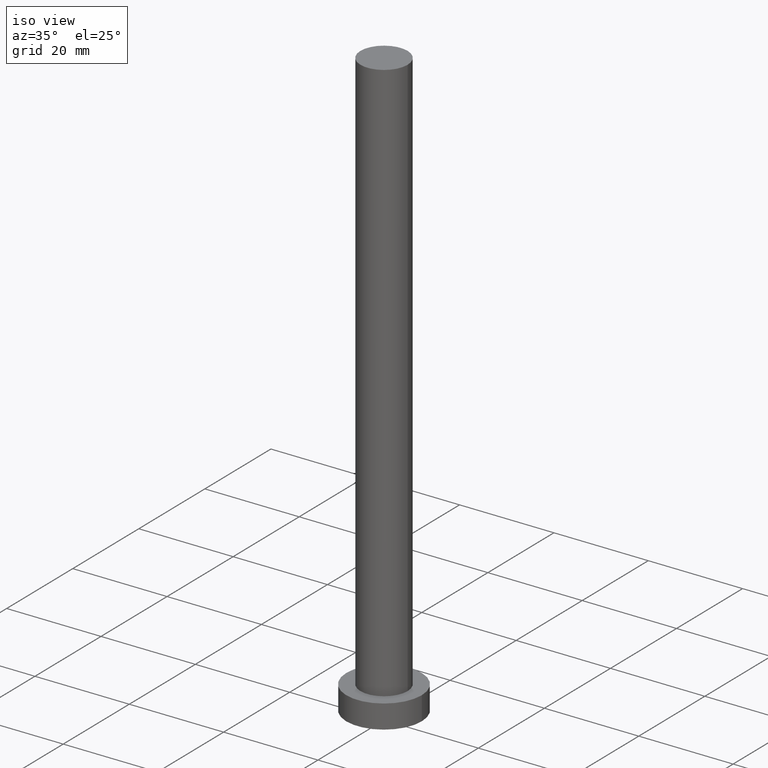
[diagram: clean part render]
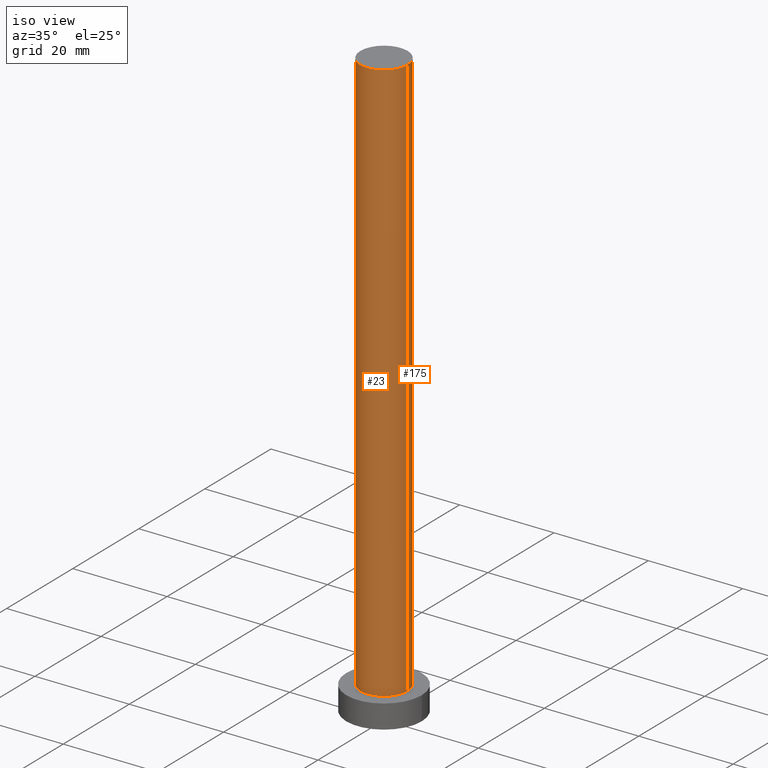
[diagram: same view with one multi-face feature highlighted, each face labeled with its STEP entity id]
A machine part, iso view. The highlighted faces form ONE feature: a constant-radius fillet chain: 2 tangent blend faces with common blend radius 5 mm. The faces share edges in the B-rep.
Their STEP definitions:
[1] entity #175 (Cylinder):
#1 = DIRECTION ( 'NONE',  ( 0.000000000000000000, 0.000000000000000000, 1.000000000000000000 ) ) ;
#8 = CARTESIAN_POINT ( 'NONE',  ( 5.000000000000000888, 6.123233995736767268E-16, 125.0000000000000000 ) ) ;
#16 = DIRECTION ( 'NONE',  ( -1.000000000000000000, 0.000000000000000000, 0.000000000000000000 ) ) ;
#18 = VERTEX_POINT ( 'NONE', #149 ) ;
#20 = VERTEX_POINT ( 'NONE', #32 ) ;
#32 = CARTESIAN_POINT ( 'NONE',  ( 5.000000000000000888, 6.123233995736767268E-16, 125.0000000000000000 ) ) ;
#33 = VECTOR ( 'NONE', #46, 1000.000000000000000 ) ;
#34 = LINE ( 'NONE', #103, #33 ) ;
#38 = CYLINDRICAL_SURFACE ( 'NONE', #72, 5.000000000000000888 ) ;
#46 = DIRECTION ( 'NONE',  ( -0.000000000000000000, -0.000000000000000000, -1.000000000000000000 ) ) ;
#49 = CARTESIAN_POINT ( 'NONE',  ( -5.000000000000000888, 0.000000000000000000, 125.0000000000000000 ) ) ;
#62 = EDGE_CURVE ( 'NONE', #20, #18, #80, .T. ) ;
#68 = DIRECTION ( 'NONE',  ( 0.000000000000000000, 0.000000000000000000, 1.000000000000000000 ) ) ;
#69 = CIRCLE ( 'NONE', #180, 5.000000000000000888 ) ;
#72 = AXIS2_PLACEMENT_3D ( 'NONE', #109, #190, #16 ) ;
#74 = EDGE_CURVE ( 'NONE', #241, #238, #34, .T. ) ;
#77 = VECTOR ( 'NONE', #165, 1000.000000000000000 ) ;
#80 = LINE ( 'NONE', #8, #77 ) ;
#90 = EDGE_CURVE ( 'NONE', #18, #238, #159, .T. ) ;
#96 = CARTESIAN_POINT ( 'NONE',  ( 0.000000000000000000, 0.000000000000000000, 125.0000000000000000 ) ) ;
#103 = CARTESIAN_POINT ( 'NONE',  ( -5.000000000000000888, 0.000000000000000000, 125.0000000000000000 ) ) ;
#109 = CARTESIAN_POINT ( 'NONE',  ( 0.000000000000000000, 0.000000000000000000, 125.0000000000000000 ) ) ;
#121 = CARTESIAN_POINT ( 'NONE',  ( -5.000000000000000888, 0.000000000000000000, 5.000000000000000000 ) ) ;
#135 = FACE_OUTER_BOUND ( 'NONE', #210, .T. ) ;
#149 = CARTESIAN_POINT ( 'NONE',  ( 5.000000000000000888, 6.123233995736767268E-16, 5.000000000000000000 ) ) ;
#152 = ORIENTED_EDGE ( 'NONE', *, *, #90, .T. ) ;
#156 = EDGE_CURVE ( 'NONE', #20, #241, #69, .T. ) ;
#159 = CIRCLE ( 'NONE', #202, 5.000000000000000888 ) ;
#165 = DIRECTION ( 'NONE',  ( -0.000000000000000000, -0.000000000000000000, -1.000000000000000000 ) ) ;
#166 = ORIENTED_EDGE ( 'NONE', *, *, #62, .T. ) ;
#175 = ADVANCED_FACE ( 'NONE', ( #135 ), #38, .T. ) ;
#179 = CARTESIAN_POINT ( 'NONE',  ( 0.000000000000000000, 0.000000000000000000, 5.000000000000000000 ) ) ;
#180 = AXIS2_PLACEMENT_3D ( 'NONE', #96, #1, #230 ) ;
#190 = DIRECTION ( 'NONE',  ( -0.000000000000000000, -0.000000000000000000, -1.000000000000000000 ) ) ;
#192 = ORIENTED_EDGE ( 'NONE', *, *, #74, .F. ) ;
#202 = AXIS2_PLACEMENT_3D ( 'NONE', #179, #68, #251 ) ;
#210 = EDGE_LOOP ( 'NONE', ( #221, #166, #152, #192 ) ) ;
#221 = ORIENTED_EDGE ( 'NONE', *, *, #156, .F. ) ;
#230 = DIRECTION ( 'NONE',  ( 1.000000000000000000, 0.000000000000000000, 0.000000000000000000 ) ) ;
#238 = VERTEX_POINT ( 'NONE', #121 ) ;
#241 = VERTEX_POINT ( 'NONE', #49 ) ;
#251 = DIRECTION ( 'NONE',  ( 1.000000000000000000, 0.000000000000000000, 0.000000000000000000 ) ) ;
[2] entity #23 (Cylinder):
#2 = CIRCLE ( 'NONE', #129, 5.000000000000000888 ) ;
#8 = CARTESIAN_POINT ( 'NONE',  ( 5.000000000000000888, 6.123233995736767268E-16, 125.0000000000000000 ) ) ;
#17 = DIRECTION ( 'NONE',  ( 0.000000000000000000, 0.000000000000000000, 1.000000000000000000 ) ) ;
#18 = VERTEX_POINT ( 'NONE', #149 ) ;
#20 = VERTEX_POINT ( 'NONE', #32 ) ;
#23 = ADVANCED_FACE ( 'NONE', ( #203 ), #198, .T. ) ;
#29 = DIRECTION ( 'NONE',  ( -0.000000000000000000, -0.000000000000000000, -1.000000000000000000 ) ) ;
#32 = CARTESIAN_POINT ( 'NONE',  ( 5.000000000000000888, 6.123233995736767268E-16, 125.0000000000000000 ) ) ;
#33 = VECTOR ( 'NONE', #46, 1000.000000000000000 ) ;
#34 = LINE ( 'NONE', #103, #33 ) ;
#46 = DIRECTION ( 'NONE',  ( -0.000000000000000000, -0.000000000000000000, -1.000000000000000000 ) ) ;
#49 = CARTESIAN_POINT ( 'NONE',  ( -5.000000000000000888, 0.000000000000000000, 125.0000000000000000 ) ) ;
#53 = AXIS2_PLACEMENT_3D ( 'NONE', #118, #29, #245 ) ;
#62 = EDGE_CURVE ( 'NONE', #20, #18, #80, .T. ) ;
#74 = EDGE_CURVE ( 'NONE', #241, #238, #34, .T. ) ;
#75 = CARTESIAN_POINT ( 'NONE',  ( 0.000000000000000000, 0.000000000000000000, 125.0000000000000000 ) ) ;
#77 = VECTOR ( 'NONE', #165, 1000.000000000000000 ) ;
#80 = LINE ( 'NONE', #8, #77 ) ;
#91 = DIRECTION ( 'NONE',  ( 1.000000000000000000, 0.000000000000000000, 0.000000000000000000 ) ) ;
#95 = EDGE_LOOP ( 'NONE', ( #111, #191, #145, #163 ) ) ;
#103 = CARTESIAN_POINT ( 'NONE',  ( -5.000000000000000888, 0.000000000000000000, 125.0000000000000000 ) ) ;
#110 = EDGE_CURVE ( 'NONE', #241, #20, #2, .T. ) ;
#111 = ORIENTED_EDGE ( 'NONE', *, *, #62, .F. ) ;
#118 = CARTESIAN_POINT ( 'NONE',  ( 0.000000000000000000, 0.000000000000000000, 125.0000000000000000 ) ) ;
#121 = CARTESIAN_POINT ( 'NONE',  ( -5.000000000000000888, 0.000000000000000000, 5.000000000000000000 ) ) ;
#129 = AXIS2_PLACEMENT_3D ( 'NONE', #75, #17, #171 ) ;
#145 = ORIENTED_EDGE ( 'NONE', *, *, #74, .T. ) ;
#149 = CARTESIAN_POINT ( 'NONE',  ( 5.000000000000000888, 6.123233995736767268E-16, 5.000000000000000000 ) ) ;
#163 = ORIENTED_EDGE ( 'NONE', *, *, #185, .T. ) ;
#165 = DIRECTION ( 'NONE',  ( -0.000000000000000000, -0.000000000000000000, -1.000000000000000000 ) ) ;
#170 = AXIS2_PLACEMENT_3D ( 'NONE', #253, #193, #91 ) ;
#171 = DIRECTION ( 'NONE',  ( 1.000000000000000000, 0.000000000000000000, 0.000000000000000000 ) ) ;
#185 = EDGE_CURVE ( 'NONE', #238, #18, #220, .T. ) ;
#191 = ORIENTED_EDGE ( 'NONE', *, *, #110, .F. ) ;
#193 = DIRECTION ( 'NONE',  ( 0.000000000000000000, 0.000000000000000000, 1.000000000000000000 ) ) ;
#198 = CYLINDRICAL_SURFACE ( 'NONE', #53, 5.000000000000000888 ) ;
#203 = FACE_OUTER_BOUND ( 'NONE', #95, .T. ) ;
#220 = CIRCLE ( 'NONE', #170, 5.000000000000000888 ) ;
#238 = VERTEX_POINT ( 'NONE', #121 ) ;
#241 = VERTEX_POINT ( 'NONE', #49 ) ;
#245 = DIRECTION ( 'NONE',  ( -1.000000000000000000, 0.000000000000000000, 0.000000000000000000 ) ) ;
#253 = CARTESIAN_POINT ( 'NONE',  ( 0.000000000000000000, 0.000000000000000000, 5.000000000000000000 ) ) ;